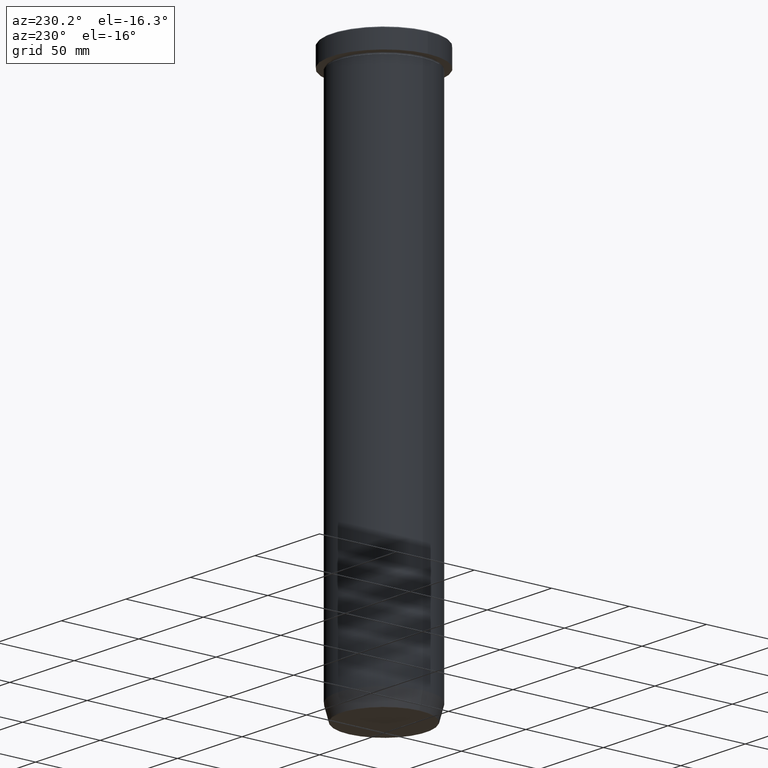
[diagram: clean part render]
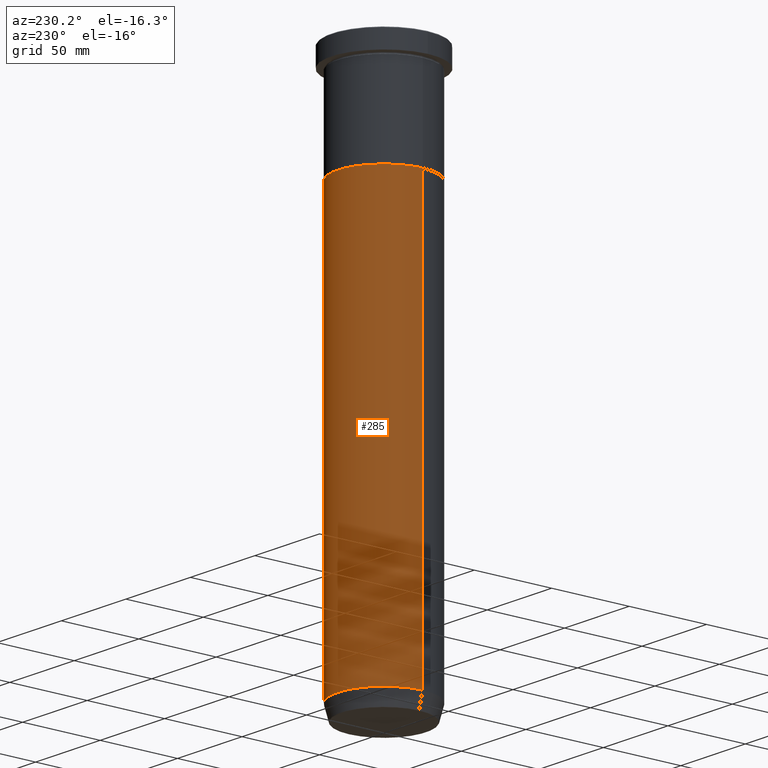
[diagram: same view with one face highlighted and labeled with its STEP entity id]
A machine part, auxiliary view. The second image highlights one B-rep face of the part: STEP entity #285.
In plain terms, the highlighted cylindrical surface (partial cylindrical patch) has radius 30 mm, axis along (-0, -0, 1).
Its self-contained STEP definition (entity closure, byte-faithful):
#2 = DIRECTION ( 'NONE',  ( 1.000000000000000000, 0.000000000000000000, 0.000000000000000000 ) ) ;
#22 = CARTESIAN_POINT ( 'NONE',  ( 0.000000000000000000, 0.000000000000000000, -70.00000000000000000 ) ) ;
#40 = EDGE_CURVE ( 'NONE', #117, #72, #216, .T. ) ;
#64 = ORIENTED_EDGE ( 'NONE', *, *, #127, .F. ) ;
#72 = VERTEX_POINT ( 'NONE', #568 ) ;
#81 = DIRECTION ( 'NONE',  ( -0.000000000000000000, -0.000000000000000000, 1.000000000000000000 ) ) ;
#105 = EDGE_CURVE ( 'NONE', #334, #480, #508, .T. ) ;
#117 = VERTEX_POINT ( 'NONE', #364 ) ;
#127 = EDGE_CURVE ( 'NONE', #480, #72, #510, .T. ) ;
#137 = CARTESIAN_POINT ( 'NONE',  ( 0.000000000000000000, 0.000000000000000000, -340.0000000000000000 ) ) ;
#155 = CIRCLE ( 'NONE', #577, 30.00000000000000000 ) ;
#163 = AXIS2_PLACEMENT_3D ( 'NONE', #22, #81, #173 ) ;
#173 = DIRECTION ( 'NONE',  ( 1.000000000000000000, 0.000000000000000000, 0.000000000000000000 ) ) ;
#189 = FACE_OUTER_BOUND ( 'NONE', #198, .T. ) ;
#198 = EDGE_LOOP ( 'NONE', ( #373, #284, #64, #257 ) ) ;
#216 = LINE ( 'NONE', #444, #355 ) ;
#255 = AXIS2_PLACEMENT_3D ( 'NONE', #493, #362, #2 ) ;
#257 = ORIENTED_EDGE ( 'NONE', *, *, #105, .F. ) ;
#284 = ORIENTED_EDGE ( 'NONE', *, *, #40, .T. ) ;
#285 = ADVANCED_FACE ( 'NONE', ( #189 ), #359, .T. ) ;
#294 = DIRECTION ( 'NONE',  ( -0.000000000000000000, -0.000000000000000000, 1.000000000000000000 ) ) ;
#334 = VERTEX_POINT ( 'NONE', #497 ) ;
#335 = VECTOR ( 'NONE', #294, 1000.000000000000000 ) ;
#352 = EDGE_CURVE ( 'NONE', #334, #117, #155, .T. ) ;
#355 = VECTOR ( 'NONE', #396, 1000.000000000000000 ) ;
#359 = CYLINDRICAL_SURFACE ( 'NONE', #255, 30.00000000000000000 ) ;
#362 = DIRECTION ( 'NONE',  ( -0.000000000000000000, -0.000000000000000000, 1.000000000000000000 ) ) ;
#364 = CARTESIAN_POINT ( 'NONE',  ( -30.00000000000000000, 3.673940397442059178E-15, -340.0000000000000000 ) ) ;
#373 = ORIENTED_EDGE ( 'NONE', *, *, #352, .T. ) ;
#396 = DIRECTION ( 'NONE',  ( -0.000000000000000000, -0.000000000000000000, 1.000000000000000000 ) ) ;
#444 = CARTESIAN_POINT ( 'NONE',  ( -30.00000000000000000, 3.673940397442059178E-15, 0.000000000000000000 ) ) ;
#472 = CARTESIAN_POINT ( 'NONE',  ( 30.00000000000000000, 0.000000000000000000, 0.000000000000000000 ) ) ;
#480 = VERTEX_POINT ( 'NONE', #586 ) ;
#493 = CARTESIAN_POINT ( 'NONE',  ( 0.000000000000000000, 0.000000000000000000, 0.000000000000000000 ) ) ;
#497 = CARTESIAN_POINT ( 'NONE',  ( 30.00000000000000000, 0.000000000000000000, -340.0000000000000000 ) ) ;
#507 = DIRECTION ( 'NONE',  ( 1.000000000000000000, 0.000000000000000000, 0.000000000000000000 ) ) ;
#508 = LINE ( 'NONE', #472, #335 ) ;
#510 = CIRCLE ( 'NONE', #163, 30.00000000000000000 ) ;
#568 = CARTESIAN_POINT ( 'NONE',  ( -30.00000000000000000, 3.673940397442059178E-15, -70.00000000000000000 ) ) ;
#577 = AXIS2_PLACEMENT_3D ( 'NONE', #137, #599, #507 ) ;
#586 = CARTESIAN_POINT ( 'NONE',  ( 30.00000000000000000, 0.000000000000000000, -70.00000000000000000 ) ) ;
#599 = DIRECTION ( 'NONE',  ( -0.000000000000000000, -0.000000000000000000, 1.000000000000000000 ) ) ;